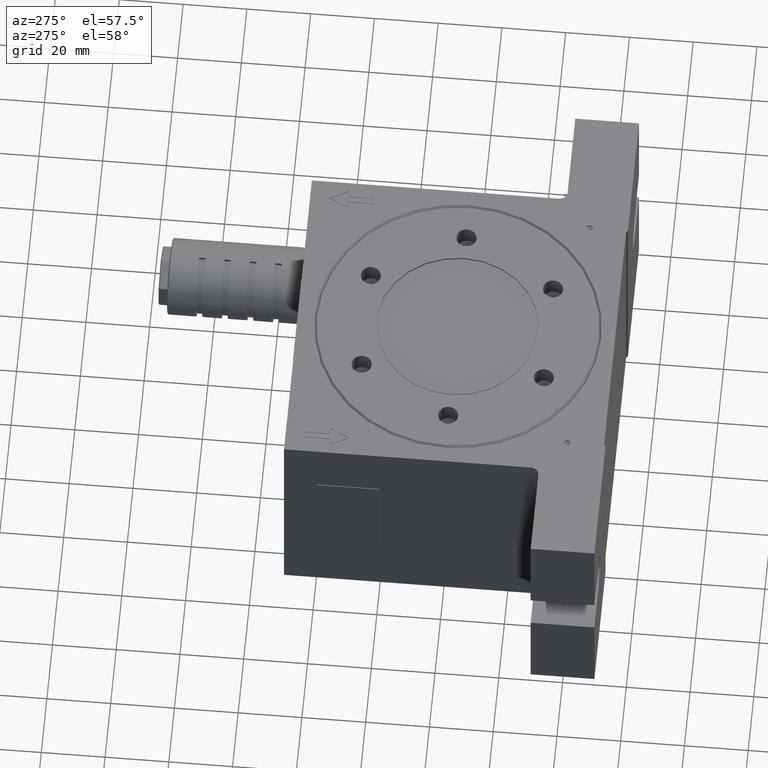
[diagram: clean part render]
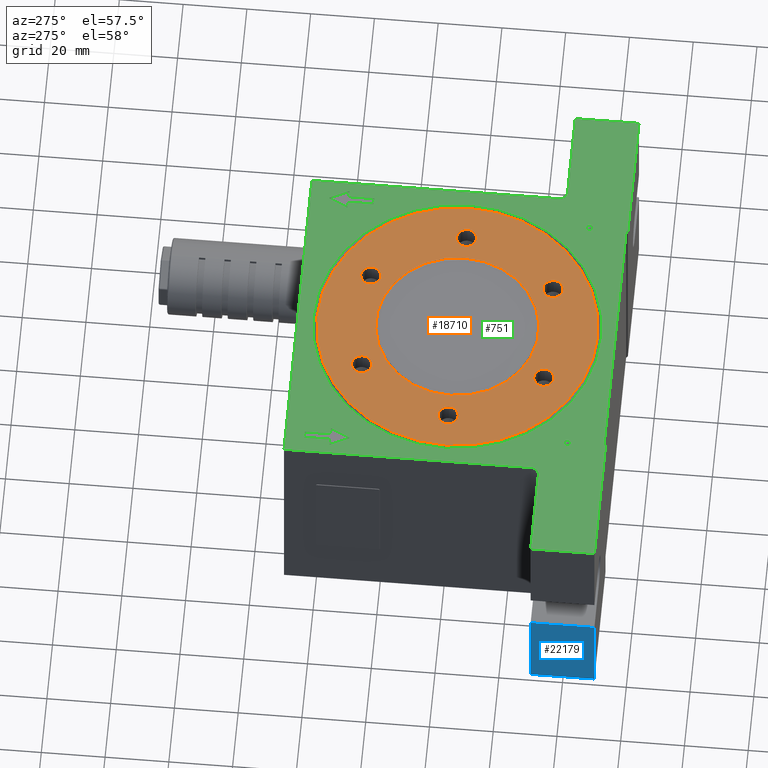
[diagram: same view with three faces highlighted in distinct colors, each labeled with its STEP entity id]
A machine part, auxiliary view with three faces highlighted in distinct colors.
Their STEP definitions:

[orange] entity #18710 — the highlighted planar face has unit normal (0, -0, -1).
#187 = EDGE_CURVE ( 'NONE', #4359, #15449, #24639, .T. ) ;
#356 = DIRECTION ( 'NONE',  ( 1.000000000000000000, 0.0000000000000000000, 0.0000000000000000000 ) ) ;
#495 = AXIS2_PLACEMENT_3D ( 'NONE', #11500, #1926, #19218 ) ;
#726 = VERTEX_POINT ( 'NONE', #12535 ) ;
#773 = AXIS2_PLACEMENT_3D ( 'NONE', #19747, #6613, #8198 ) ;
#787 = DIRECTION ( 'NONE',  ( 1.627025617018336800E-030, 8.801438384760311500E-031, 1.000000000000000000 ) ) ;
#859 = AXIS2_PLACEMENT_3D ( 'NONE', #5804, #19093, #22670 ) ;
#1200 = AXIS2_PLACEMENT_3D ( 'NONE', #8725, #10547, #22447 ) ;
#1470 = EDGE_CURVE ( 'NONE', #2063, #19781, #15410, .T. ) ;
#1756 = VERTEX_POINT ( 'NONE', #19270 ) ;
#1815 = CARTESIAN_POINT ( 'NONE',  ( 13.35000000000004200, -28.57883832488645100, 36.49999999999991500 ) ) ;
#1853 = EDGE_LOOP ( 'NONE', ( #2718, #23961 ) ) ;
#1926 = DIRECTION ( 'NONE',  ( 1.627025617018336800E-030, 8.801438384760311500E-031, 1.000000000000000000 ) ) ;
#2063 = VERTEX_POINT ( 'NONE', #13904 ) ;
#2089 = DIRECTION ( 'NONE',  ( 1.000000000000000000, 0.0000000000000000000, 0.0000000000000000000 ) ) ;
#2090 = AXIS2_PLACEMENT_3D ( 'NONE', #21363, #9643, #11819 ) ;
#2139 = ORIENTED_EDGE ( 'NONE', *, *, #16079, .F. ) ;
#2262 = AXIS2_PLACEMENT_3D ( 'NONE', #14224, #18022, #12465 ) ;
#2444 = EDGE_CURVE ( 'NONE', #8062, #8863, #22168, .T. ) ;
#2718 = ORIENTED_EDGE ( 'NONE', *, *, #10221, .F. ) ;
#2778 = DIRECTION ( 'NONE',  ( 1.000000000000000000, 0.0000000000000000000, 0.0000000000000000000 ) ) ;
#2784 = EDGE_CURVE ( 'NONE', #1756, #16754, #11461, .T. ) ;
#2846 = CARTESIAN_POINT ( 'NONE',  ( 16.50000000000000000, 28.57883832488643300, 36.50000000000000000 ) ) ;
#2893 = DIRECTION ( 'NONE',  ( 1.627025617018336800E-030, 8.801438384760311500E-031, 1.000000000000000000 ) ) ;
#3168 = CARTESIAN_POINT ( 'NONE',  ( 29.85000000000000100, 1.426355154954586900E-014, 36.50000000000000000 ) ) ;
#3231 = CARTESIAN_POINT ( 'NONE',  ( 1.417484439069005600E-028, 0.0000000000000000000, 36.50000000000000000 ) ) ;
#3627 = CARTESIAN_POINT ( 'NONE',  ( 33.00000000000000000, 1.387778780781445700E-014, 36.50000000000000000 ) ) ;
#3646 = EDGE_LOOP ( 'NONE', ( #18014, #17057 ) ) ;
#3931 = CARTESIAN_POINT ( 'NONE',  ( -16.49999999999995700, -28.57883832488645100, 36.49999999999991500 ) ) ;
#3988 = AXIS2_PLACEMENT_3D ( 'NONE', #5592, #19044, #18887 ) ;
#4359 = VERTEX_POINT ( 'NONE', #17299 ) ;
#4378 = DIRECTION ( 'NONE',  ( 1.000000000000000000, 0.0000000000000000000, 0.0000000000000000000 ) ) ;
#4406 = ORIENTED_EDGE ( 'NONE', *, *, #10395, .F. ) ;
#4694 = DIRECTION ( 'NONE',  ( 1.627025617018336800E-030, 8.801438384760311500E-031, 1.000000000000000000 ) ) ;
#4880 = FACE_BOUND ( 'NONE', #6151, .T. ) ;
#4937 = EDGE_LOOP ( 'NONE', ( #15360, #18731 ) ) ;
#5182 = FACE_BOUND ( 'NONE', #6939, .T. ) ;
#5586 = EDGE_CURVE ( 'NONE', #726, #12410, #18868, .T. ) ;
#5592 = CARTESIAN_POINT ( 'NONE',  ( 1.417484439069005600E-028, 0.0000000000000000000, 36.50000000000000000 ) ) ;
#5804 = CARTESIAN_POINT ( 'NONE',  ( -16.49999999999995700, -28.57883832488645100, 36.49999999999991500 ) ) ;
#5914 = CARTESIAN_POINT ( 'NONE',  ( 16.50000000000000000, 28.57883832488643300, 36.50000000000000000 ) ) ;
#6002 = CIRCLE ( 'NONE', #2262, 25.50000000000000000 ) ;
#6151 = EDGE_LOOP ( 'NONE', ( #23982, #13983 ) ) ;
#6289 = CIRCLE ( 'NONE', #21385, 3.149999999999999900 ) ;
#6367 = AXIS2_PLACEMENT_3D ( 'NONE', #5914, #9505, #2089 ) ;
#6613 = DIRECTION ( 'NONE',  ( 1.627025617018336800E-030, 8.801438384760311500E-031, 1.000000000000000000 ) ) ;
#6939 = EDGE_LOOP ( 'NONE', ( #4406, #9985 ) ) ;
#7091 = CARTESIAN_POINT ( 'NONE',  ( -19.64999999999995900, -28.57883832488645100, 36.49999999999991500 ) ) ;
#7108 = EDGE_CURVE ( 'NONE', #19781, #2063, #13160, .T. ) ;
#7480 = AXIS2_PLACEMENT_3D ( 'NONE', #2846, #10599, #16174 ) ;
#7692 = AXIS2_PLACEMENT_3D ( 'NONE', #13882, #787, #4378 ) ;
#7751 = AXIS2_PLACEMENT_3D ( 'NONE', #3627, #9157, #24336 ) ;
#7857 = DIRECTION ( 'NONE',  ( 1.627025617018336800E-030, 8.801438384760311500E-031, 1.000000000000000000 ) ) ;
#8062 = VERTEX_POINT ( 'NONE', #11815 ) ;
#8132 = EDGE_LOOP ( 'NONE', ( #10559, #23648 ) ) ;
#8198 = DIRECTION ( 'NONE',  ( 1.000000000000000000, 0.0000000000000000000, 0.0000000000000000000 ) ) ;
#8228 = VERTEX_POINT ( 'NONE', #9775 ) ;
#8725 = CARTESIAN_POINT ( 'NONE',  ( -16.50000000000000000, 28.57883832488643300, 36.50000000000000000 ) ) ;
#8767 = CIRCLE ( 'NONE', #7480, 3.149999999999999900 ) ;
#8863 = VERTEX_POINT ( 'NONE', #3168 ) ;
#9044 = CARTESIAN_POINT ( 'NONE',  ( -16.50000000000000000, 28.57883832488643300, 36.50000000000000000 ) ) ;
#9118 = VERTEX_POINT ( 'NONE', #20208 ) ;
#9157 = DIRECTION ( 'NONE',  ( 1.627025617018336800E-030, 8.801438384760311500E-031, 1.000000000000000000 ) ) ;
#9270 = CARTESIAN_POINT ( 'NONE',  ( 19.65000000000000200, 28.57883832488643300, 36.50000000000000000 ) ) ;
#9431 = DIRECTION ( 'NONE',  ( 1.627025617018336800E-030, 8.801438384760311500E-031, 1.000000000000000000 ) ) ;
#9505 = DIRECTION ( 'NONE',  ( 1.627025617018336800E-030, 8.801438384760311500E-031, 1.000000000000000000 ) ) ;
#9643 = DIRECTION ( 'NONE',  ( 1.627025617018336800E-030, 8.801438384760311500E-031, 1.000000000000000000 ) ) ;
#9666 = CARTESIAN_POINT ( 'NONE',  ( 33.00000000000000000, 1.387778780781445700E-014, 36.50000000000000000 ) ) ;
#9775 = CARTESIAN_POINT ( 'NONE',  ( -19.65000000000000200, 28.57883832488643300, 36.50000000000000000 ) ) ;
#9832 = DIRECTION ( 'NONE',  ( 1.627025617018336800E-030, 8.801438384760311500E-031, 1.000000000000000000 ) ) ;
#9917 = CARTESIAN_POINT ( 'NONE',  ( 16.50000000000004300, -28.57883832488645100, 36.49999999999991500 ) ) ;
#9985 = ORIENTED_EDGE ( 'NONE', *, *, #23264, .F. ) ;
#9998 = ORIENTED_EDGE ( 'NONE', *, *, #7108, .T. ) ;
#10164 = DIRECTION ( 'NONE',  ( 1.000000000000000000, 0.0000000000000000000, 0.0000000000000000000 ) ) ;
#10221 = EDGE_CURVE ( 'NONE', #16754, #1756, #6002, .T. ) ;
#10395 = EDGE_CURVE ( 'NONE', #9118, #8228, #6289, .T. ) ;
#10547 = DIRECTION ( 'NONE',  ( 1.627025617018336800E-030, 8.801438384760311500E-031, 1.000000000000000000 ) ) ;
#10559 = ORIENTED_EDGE ( 'NONE', *, *, #5586, .F. ) ;
#10599 = DIRECTION ( 'NONE',  ( 1.627025617018336800E-030, 8.801438384760311500E-031, 1.000000000000000000 ) ) ;
#10660 = AXIS2_PLACEMENT_3D ( 'NONE', #3931, #7857, #356 ) ;
#10807 = VERTEX_POINT ( 'NONE', #14363 ) ;
#10857 = FACE_OUTER_BOUND ( 'NONE', #22014, .T. ) ;
#11340 = DIRECTION ( 'NONE',  ( 1.000000000000000000, 0.0000000000000000000, 0.0000000000000000000 ) ) ;
#11461 = CIRCLE ( 'NONE', #20362, 25.50000000000000000 ) ;
#11500 = CARTESIAN_POINT ( 'NONE',  ( -33.00000000000000000, 0.0000000000000000000, 36.50000000000000000 ) ) ;
#11725 = CARTESIAN_POINT ( 'NONE',  ( 44.00000000000000000, 5.425185320222774500E-015, 36.50000000000000000 ) ) ;
#11815 = CARTESIAN_POINT ( 'NONE',  ( 36.14999999999999900, 1.387778780781445700E-014, 36.50000000000000000 ) ) ;
#11819 = DIRECTION ( 'NONE',  ( -1.000000000000000000, 0.0000000000000000000, 0.0000000000000000000 ) ) ;
#12199 = AXIS2_PLACEMENT_3D ( 'NONE', #3231, #2893, #24090 ) ;
#12410 = VERTEX_POINT ( 'NONE', #7091 ) ;
#12465 = DIRECTION ( 'NONE',  ( 1.000000000000000000, 0.0000000000000000000, 0.0000000000000000000 ) ) ;
#12535 = CARTESIAN_POINT ( 'NONE',  ( -13.34999999999995900, -28.57883832488645100, 36.49999999999991500 ) ) ;
#12824 = EDGE_CURVE ( 'NONE', #12410, #726, #19170, .T. ) ;
#12863 = VERTEX_POINT ( 'NONE', #9270 ) ;
#13121 = AXIS2_PLACEMENT_3D ( 'NONE', #9917, #9832, #10164 ) ;
#13160 = CIRCLE ( 'NONE', #2090, 44.00000000000000000 ) ;
#13231 = CARTESIAN_POINT ( 'NONE',  ( 25.50000000000000000, 0.0000000000000000000, 36.50000000000000000 ) ) ;
#13389 = VERTEX_POINT ( 'NONE', #22937 ) ;
#13495 = PLANE ( 'NONE',  #3988 ) ;
#13864 = CIRCLE ( 'NONE', #773, 3.149999999999999900 ) ;
#13882 = CARTESIAN_POINT ( 'NONE',  ( 16.50000000000004300, -28.57883832488645100, 36.49999999999991500 ) ) ;
#13904 = CARTESIAN_POINT ( 'NONE',  ( -44.00000000000000000, 0.0000000000000000000, 36.50000000000000000 ) ) ;
#13983 = ORIENTED_EDGE ( 'NONE', *, *, #18717, .F. ) ;
#14199 = CARTESIAN_POINT ( 'NONE',  ( 1.417484439069005600E-028, 0.0000000000000000000, 36.50000000000000000 ) ) ;
#14224 = CARTESIAN_POINT ( 'NONE',  ( 1.417484439069005600E-028, 0.0000000000000000000, 36.50000000000000000 ) ) ;
#14363 = CARTESIAN_POINT ( 'NONE',  ( -29.85000000000000100, 0.0000000000000000000, 36.50000000000000000 ) ) ;
#14620 = DIRECTION ( 'NONE',  ( 1.000000000000000000, 0.0000000000000000000, 0.0000000000000000000 ) ) ;
#15088 = VERTEX_POINT ( 'NONE', #21248 ) ;
#15319 = FACE_BOUND ( 'NONE', #15691, .T. ) ;
#15360 = ORIENTED_EDGE ( 'NONE', *, *, #18349, .F. ) ;
#15410 = CIRCLE ( 'NONE', #12199, 44.00000000000000000 ) ;
#15449 = VERTEX_POINT ( 'NONE', #1815 ) ;
#15691 = EDGE_LOOP ( 'NONE', ( #24468, #2139 ) ) ;
#16079 = EDGE_CURVE ( 'NONE', #15088, #12863, #8767, .T. ) ;
#16174 = DIRECTION ( 'NONE',  ( 1.000000000000000000, 0.0000000000000000000, 0.0000000000000000000 ) ) ;
#16211 = FACE_BOUND ( 'NONE', #3646, .T. ) ;
#16754 = VERTEX_POINT ( 'NONE', #13231 ) ;
#17057 = ORIENTED_EDGE ( 'NONE', *, *, #19793, .F. ) ;
#17224 = AXIS2_PLACEMENT_3D ( 'NONE', #9666, #9431, #11340 ) ;
#17299 = CARTESIAN_POINT ( 'NONE',  ( 19.65000000000004100, -28.57883832488645100, 36.49999999999991500 ) ) ;
#18014 = ORIENTED_EDGE ( 'NONE', *, *, #187, .F. ) ;
#18022 = DIRECTION ( 'NONE',  ( 1.627025617018336800E-030, 8.801438384760311500E-031, 1.000000000000000000 ) ) ;
#18349 = EDGE_CURVE ( 'NONE', #10807, #13389, #13864, .T. ) ;
#18702 = EDGE_CURVE ( 'NONE', #12863, #15088, #24208, .T. ) ;
#18710 = ADVANCED_FACE ( 'NONE', ( #10857, #15319, #5182, #21264, #4880, #16211, #23916, #19154 ), #13495, .F. ) ;
#18717 = EDGE_CURVE ( 'NONE', #8863, #8062, #22143, .T. ) ;
#18731 = ORIENTED_EDGE ( 'NONE', *, *, #19626, .F. ) ;
#18849 = CIRCLE ( 'NONE', #1200, 3.149999999999999900 ) ;
#18868 = CIRCLE ( 'NONE', #10660, 3.149999999999999900 ) ;
#18887 = DIRECTION ( 'NONE',  ( -1.000000000000000000, 0.0000000000000000000, -1.627025617018336800E-030 ) ) ;
#19044 = DIRECTION ( 'NONE',  ( 1.627025617018336800E-030, -8.801438384760311500E-031, -1.000000000000000000 ) ) ;
#19093 = DIRECTION ( 'NONE',  ( 1.627025617018336800E-030, 8.801438384760311500E-031, 1.000000000000000000 ) ) ;
#19154 = FACE_BOUND ( 'NONE', #1853, .T. ) ;
#19170 = CIRCLE ( 'NONE', #859, 3.149999999999999900 ) ;
#19218 = DIRECTION ( 'NONE',  ( 1.000000000000000000, 0.0000000000000000000, 0.0000000000000000000 ) ) ;
#19270 = CARTESIAN_POINT ( 'NONE',  ( -25.50000000000000000, 3.122849337825749800E-015, 36.50000000000000000 ) ) ;
#19626 = EDGE_CURVE ( 'NONE', #13389, #10807, #23243, .T. ) ;
#19747 = CARTESIAN_POINT ( 'NONE',  ( -33.00000000000000000, 0.0000000000000000000, 36.50000000000000000 ) ) ;
#19781 = VERTEX_POINT ( 'NONE', #11725 ) ;
#19793 = EDGE_CURVE ( 'NONE', #15449, #4359, #23221, .T. ) ;
#20208 = CARTESIAN_POINT ( 'NONE',  ( -13.35000000000000100, 28.57883832488643300, 36.50000000000000000 ) ) ;
#20362 = AXIS2_PLACEMENT_3D ( 'NONE', #14199, #4694, #2778 ) ;
#21248 = CARTESIAN_POINT ( 'NONE',  ( 13.35000000000000100, 28.57883832488643300, 36.50000000000000000 ) ) ;
#21264 = FACE_BOUND ( 'NONE', #4937, .T. ) ;
#21363 = CARTESIAN_POINT ( 'NONE',  ( 1.417484439069005600E-028, 0.0000000000000000000, 36.50000000000000000 ) ) ;
#21385 = AXIS2_PLACEMENT_3D ( 'NONE', #9044, #22165, #14620 ) ;
#22014 = EDGE_LOOP ( 'NONE', ( #22495, #9998 ) ) ;
#22143 = CIRCLE ( 'NONE', #17224, 3.149999999999999900 ) ;
#22165 = DIRECTION ( 'NONE',  ( 1.627025617018336800E-030, 8.801438384760311500E-031, 1.000000000000000000 ) ) ;
#22168 = CIRCLE ( 'NONE', #7751, 3.149999999999999900 ) ;
#22447 = DIRECTION ( 'NONE',  ( 1.000000000000000000, 0.0000000000000000000, 0.0000000000000000000 ) ) ;
#22495 = ORIENTED_EDGE ( 'NONE', *, *, #1470, .T. ) ;
#22670 = DIRECTION ( 'NONE',  ( 1.000000000000000000, 0.0000000000000000000, 0.0000000000000000000 ) ) ;
#22937 = CARTESIAN_POINT ( 'NONE',  ( -36.14999999999999900, 3.857637417314134100E-016, 36.50000000000000000 ) ) ;
#23221 = CIRCLE ( 'NONE', #7692, 3.149999999999999900 ) ;
#23243 = CIRCLE ( 'NONE', #495, 3.149999999999999900 ) ;
#23264 = EDGE_CURVE ( 'NONE', #8228, #9118, #18849, .T. ) ;
#23648 = ORIENTED_EDGE ( 'NONE', *, *, #12824, .F. ) ;
#23916 = FACE_BOUND ( 'NONE', #8132, .T. ) ;
#23961 = ORIENTED_EDGE ( 'NONE', *, *, #2784, .F. ) ;
#23982 = ORIENTED_EDGE ( 'NONE', *, *, #2444, .F. ) ;
#24090 = DIRECTION ( 'NONE',  ( -1.000000000000000000, 0.0000000000000000000, 0.0000000000000000000 ) ) ;
#24208 = CIRCLE ( 'NONE', #6367, 3.149999999999999900 ) ;
#24336 = DIRECTION ( 'NONE',  ( 1.000000000000000000, 0.0000000000000000000, 0.0000000000000000000 ) ) ;
#24468 = ORIENTED_EDGE ( 'NONE', *, *, #18702, .F. ) ;
#24639 = CIRCLE ( 'NONE', #13121, 3.149999999999999900 ) ;

[blue] entity #22179 — the highlighted planar face has unit normal (1, -0, -0).
#764 = LINE ( 'NONE', #17593, #22506 ) ;
#927 = CARTESIAN_POINT ( 'NONE',  ( -80.00000000000000000, -50.00000000000000000, -36.50000000000007800 ) ) ;
#2739 = CARTESIAN_POINT ( 'NONE',  ( -80.00000000000000000, -50.00000000000000000, -6.499999999999989300 ) ) ;
#4111 = VERTEX_POINT ( 'NONE', #927 ) ;
#4281 = DIRECTION ( 'NONE',  ( -1.627025617018336800E-030, -8.801438384760311500E-031, -1.000000000000000000 ) ) ;
#4704 = EDGE_CURVE ( 'NONE', #16450, #4111, #8230, .T. ) ;
#5042 = LINE ( 'NONE', #14261, #8011 ) ;
#6136 = EDGE_CURVE ( 'NONE', #14195, #9215, #14105, .T. ) ;
#7333 = DIRECTION ( 'NONE',  ( 0.0000000000000000000, -1.000000000000000000, -8.801438384760299300E-031 ) ) ;
#7702 = ORIENTED_EDGE ( 'NONE', *, *, #12298, .F. ) ;
#8011 = VECTOR ( 'NONE', #12028, 1000.000000000000000 ) ;
#8042 = DIRECTION ( 'NONE',  ( 1.627025617018336800E-030, 8.801438384760311500E-031, 1.000000000000000000 ) ) ;
#8230 = LINE ( 'NONE', #14887, #24563 ) ;
#8367 = EDGE_LOOP ( 'NONE', ( #19005, #12926, #7702, #13577 ) ) ;
#9215 = VERTEX_POINT ( 'NONE', #13637 ) ;
#9868 = CARTESIAN_POINT ( 'NONE',  ( -80.00000000000000000, -50.00000000000000000, 36.49999999999991500 ) ) ;
#11282 = CARTESIAN_POINT ( 'NONE',  ( -80.00000000000000000, -50.00000000000000000, -6.499999999999989300 ) ) ;
#11714 = PLANE ( 'NONE',  #14585 ) ;
#12028 = DIRECTION ( 'NONE',  ( -1.627025617018336800E-030, -8.801438384760311500E-031, -1.000000000000000000 ) ) ;
#12298 = EDGE_CURVE ( 'NONE', #16450, #9215, #764, .T. ) ;
#12926 = ORIENTED_EDGE ( 'NONE', *, *, #6136, .T. ) ;
#13577 = ORIENTED_EDGE ( 'NONE', *, *, #4704, .T. ) ;
#13637 = CARTESIAN_POINT ( 'NONE',  ( -80.00000000000000000, -30.00000000000000000, -6.499999999999989300 ) ) ;
#14105 = LINE ( 'NONE', #2739, #19746 ) ;
#14195 = VERTEX_POINT ( 'NONE', #11282 ) ;
#14261 = CARTESIAN_POINT ( 'NONE',  ( -80.00000000000000000, -50.00000000000000000, 36.49999999999991500 ) ) ;
#14585 = AXIS2_PLACEMENT_3D ( 'NONE', #9868, #15542, #4281 ) ;
#14887 = CARTESIAN_POINT ( 'NONE',  ( -80.00000000000000000, -50.00000000000000000, -36.50000000000007800 ) ) ;
#15542 = DIRECTION ( 'NONE',  ( 1.000000000000000000, -2.864033143722703800E-060, -1.627025617018336800E-030 ) ) ;
#15825 = CARTESIAN_POINT ( 'NONE',  ( -80.00000000000000000, -30.00000000000000000, -36.50000000000007800 ) ) ;
#16450 = VERTEX_POINT ( 'NONE', #15825 ) ;
#17593 = CARTESIAN_POINT ( 'NONE',  ( -80.00000000000000000, -30.00000000000000000, -36.50000000000007800 ) ) ;
#19005 = ORIENTED_EDGE ( 'NONE', *, *, #21847, .F. ) ;
#19746 = VECTOR ( 'NONE', #23344, 1000.000000000000000 ) ;
#20196 = FACE_OUTER_BOUND ( 'NONE', #8367, .T. ) ;
#21847 = EDGE_CURVE ( 'NONE', #14195, #4111, #5042, .T. ) ;
#22179 = ADVANCED_FACE ( 'NONE', ( #20196 ), #11714, .F. ) ;
#22506 = VECTOR ( 'NONE', #8042, 1000.000000000000000 ) ;
#23344 = DIRECTION ( 'NONE',  ( 0.0000000000000000000, 1.000000000000000000, 8.801438384760299300E-031 ) ) ;
#24563 = VECTOR ( 'NONE', #7333, 1000.000000000000000 ) ;

[green] entity #751 — the highlighted planar face has unit normal (0, -0, -1).
#61 = VECTOR ( 'NONE', #8799, 1000.000000000000000 ) ;
#128 = EDGE_CURVE ( 'NONE', #12328, #13756, #13381, .T. ) ;
#232 = CARTESIAN_POINT ( 'NONE',  ( 39.99999999999999300, -38.00000000000000000, 36.50000000000000000 ) ) ;
#247 = EDGE_CURVE ( 'NONE', #3514, #23973, #22853, .T. ) ;
#300 = CARTESIAN_POINT ( 'NONE',  ( 40.99999999999999300, 37.99999999999997900, 36.50000000000000000 ) ) ;
#564 = VERTEX_POINT ( 'NONE', #15313 ) ;
#660 = EDGE_CURVE ( 'NONE', #14329, #19322, #5303, .T. ) ;
#679 = DIRECTION ( 'NONE',  ( -1.000000000000000000, 0.0000000000000000000, -1.627025617018336800E-030 ) ) ;
#751 = ADVANCED_FACE ( 'NONE', ( #4391, #823, #20490, #24021, #18958, #5893 ), #8557, .F. ) ;
#763 = CARTESIAN_POINT ( 'NONE',  ( 47.00000000000000000, 37.99999999999999300, 36.50000000000000000 ) ) ;
#823 = FACE_BOUND ( 'NONE', #13648, .T. ) ;
#857 = VECTOR ( 'NONE', #19238, 1000.000000000000000 ) ;
#1144 = VECTOR ( 'NONE', #4571, 1000.000000000000000 ) ;
#1147 = LINE ( 'NONE', #21324, #11020 ) ;
#1203 = ORIENTED_EDGE ( 'NONE', *, *, #7519, .F. ) ;
#1210 = ORIENTED_EDGE ( 'NONE', *, *, #18704, .F. ) ;
#1267 = CARTESIAN_POINT ( 'NONE',  ( -50.00000000000000700, 49.99999999999983700, 36.50000000000000000 ) ) ;
#1475 = CARTESIAN_POINT ( 'NONE',  ( 42.99999999999999300, 29.99999999999983300, 36.49999999999991500 ) ) ;
#1691 = VERTEX_POINT ( 'NONE', #3880 ) ;
#1701 = ORIENTED_EDGE ( 'NONE', *, *, #128, .F. ) ;
#1782 = EDGE_CURVE ( 'NONE', #8943, #12328, #10922, .T. ) ;
#1785 = VERTEX_POINT ( 'NONE', #10586 ) ;
#1793 = VERTEX_POINT ( 'NONE', #1267 ) ;
#1906 = VERTEX_POINT ( 'NONE', #18723 ) ;
#2028 = CARTESIAN_POINT ( 'NONE',  ( 1.417484439069005600E-028, 0.0000000000000000000, 36.50000000000000000 ) ) ;
#2377 = ORIENTED_EDGE ( 'NONE', *, *, #12975, .F. ) ;
#2532 = AXIS2_PLACEMENT_3D ( 'NONE', #18571, #7129, #9199 ) ;
#2623 = DIRECTION ( 'NONE',  ( -1.627025617018336800E-030, -8.801438384760311500E-031, -1.000000000000000000 ) ) ;
#2731 = DIRECTION ( 'NONE',  ( 0.4472135954999583700, -0.8944271909999157400, 0.0000000000000000000 ) ) ;
#2771 = EDGE_CURVE ( 'NONE', #10346, #24199, #6090, .T. ) ;
#2814 = CARTESIAN_POINT ( 'NONE',  ( -47.00000000000000000, 35.99999999999983700, 36.50000000000000000 ) ) ;
#3053 = AXIS2_PLACEMENT_3D ( 'NONE', #12525, #3206, #14542 ) ;
#3075 = EDGE_CURVE ( 'NONE', #8897, #18358, #17955, .T. ) ;
#3206 = DIRECTION ( 'NONE',  ( -1.627025617018336800E-030, -8.801438384760311500E-031, -1.000000000000000000 ) ) ;
#3260 = AXIS2_PLACEMENT_3D ( 'NONE', #18263, #6811, #12294 ) ;
#3309 = LINE ( 'NONE', #20441, #3899 ) ;
#3333 = VERTEX_POINT ( 'NONE', #10006 ) ;
#3342 = CARTESIAN_POINT ( 'NONE',  ( 45.00000000000000000, 37.99999999999982200, 36.50000000000000000 ) ) ;
#3364 = ORIENTED_EDGE ( 'NONE', *, *, #3412, .F. ) ;
#3412 = EDGE_CURVE ( 'NONE', #13756, #10346, #8749, .T. ) ;
#3438 = VECTOR ( 'NONE', #6025, 1000.000000000000000 ) ;
#3514 = VERTEX_POINT ( 'NONE', #3342 ) ;
#3642 = CARTESIAN_POINT ( 'NONE',  ( -39.99999999999999300, -49.50000000000000000, 36.50000000000000000 ) ) ;
#3664 = VECTOR ( 'NONE', #11173, 1000.000000000000000 ) ;
#3682 = EDGE_CURVE ( 'NONE', #1785, #20103, #17905, .T. ) ;
#3880 = CARTESIAN_POINT ( 'NONE',  ( -80.00000000000000000, -50.00000000000000000, 36.49999999999991500 ) ) ;
#3899 = VECTOR ( 'NONE', #24479, 1000.000000000000000 ) ;
#3974 = CIRCLE ( 'NONE', #22752, 2.500000000000002200 ) ;
#4003 = CARTESIAN_POINT ( 'NONE',  ( -52.50000000000000000, -27.50000000000000000, 36.50000000000000000 ) ) ;
#4066 = ORIENTED_EDGE ( 'NONE', *, *, #7494, .T. ) ;
#4115 = CARTESIAN_POINT ( 'NONE',  ( -80.00000000000000000, -30.00000000000000000, 36.49999999999991500 ) ) ;
#4249 = ORIENTED_EDGE ( 'NONE', *, *, #14359, .F. ) ;
#4291 = EDGE_LOOP ( 'NONE', ( #20773, #9549 ) ) ;
#4296 = VERTEX_POINT ( 'NONE', #16579 ) ;
#4391 = FACE_BOUND ( 'NONE', #4291, .T. ) ;
#4528 = DIRECTION ( 'NONE',  ( -1.000000000000000000, 0.0000000000000000000, -1.627025617018336800E-030 ) ) ;
#4568 = DIRECTION ( 'NONE',  ( 0.4472135954999583700, 0.8944271909999157400, 1.183291357831517400E-030 ) ) ;
#4571 = DIRECTION ( 'NONE',  ( 1.000000000000000000, 0.0000000000000000000, 1.627025617018336800E-030 ) ) ;
#4753 = CARTESIAN_POINT ( 'NONE',  ( 43.99999999999999300, 43.99999999999982900, 36.50000000000000000 ) ) ;
#4821 = LINE ( 'NONE', #13606, #3438 ) ;
#4829 = VECTOR ( 'NONE', #2731, 999.9999999999998900 ) ;
#4894 = CARTESIAN_POINT ( 'NONE',  ( 45.19999999999999600, 8.801438384760320300E-031, 36.50000000000000000 ) ) ;
#5246 = AXIS2_PLACEMENT_3D ( 'NONE', #12056, #2623, #10129 ) ;
#5280 = CARTESIAN_POINT ( 'NONE',  ( 80.00000000000000000, -30.00000000000000000, 36.50000000000000000 ) ) ;
#5303 = LINE ( 'NONE', #23242, #19881 ) ;
#5345 = CARTESIAN_POINT ( 'NONE',  ( -43.00000000000000000, 44.00000000000000000, 36.50000000000000000 ) ) ;
#5347 = CARTESIAN_POINT ( 'NONE',  ( 44.99999999999999300, 29.99999999999983300, 36.49999999999991500 ) ) ;
#5690 = EDGE_CURVE ( 'NONE', #15631, #15301, #12332, .T. ) ;
#5893 = FACE_BOUND ( 'NONE', #21841, .T. ) ;
#5913 = DIRECTION ( 'NONE',  ( -1.627025617018336800E-030, -8.801438384760311500E-031, -1.000000000000000000 ) ) ;
#5937 = CIRCLE ( 'NONE', #22828, 1.000000000000000900 ) ;
#6025 = DIRECTION ( 'NONE',  ( -1.000000000000000000, 0.0000000000000000000, -1.627025617018336800E-030 ) ) ;
#6090 = LINE ( 'NONE', #17910, #8480 ) ;
#6168 = DIRECTION ( 'NONE',  ( -1.000000000000000000, 0.0000000000000000000, 0.0000000000000000000 ) ) ;
#6215 = CARTESIAN_POINT ( 'NONE',  ( -41.00000000000000700, -38.00000000000000000, 36.50000000000000000 ) ) ;
#6246 = EDGE_CURVE ( 'NONE', #21814, #21378, #8445, .T. ) ;
#6250 = ORIENTED_EDGE ( 'NONE', *, *, #21008, .F. ) ;
#6281 = EDGE_LOOP ( 'NONE', ( #17947, #12229, #6357, #10409, #11236, #4066, #13786, #10024, #7270, #21105, #6250, #21438, #4249, #21556 ) ) ;
#6340 = VERTEX_POINT ( 'NONE', #4894 ) ;
#6347 = VECTOR ( 'NONE', #7445, 1000.000000000000000 ) ;
#6357 = ORIENTED_EDGE ( 'NONE', *, *, #19168, .F. ) ;
#6386 = CARTESIAN_POINT ( 'NONE',  ( -47.00000000000000000, 35.99999999999983700, 36.50000000000000000 ) ) ;
#6405 = AXIS2_PLACEMENT_3D ( 'NONE', #21019, #21097, #13292 ) ;
#6478 = DIRECTION ( 'NONE',  ( 1.000000000000000000, 0.0000000000000000000, 1.627025617018336800E-030 ) ) ;
#6504 = CARTESIAN_POINT ( 'NONE',  ( 45.00000000000000000, 37.99999999999982200, 36.50000000000000000 ) ) ;
#6752 = DIRECTION ( 'NONE',  ( 1.000000000000000000, 0.0000000000000000000, 0.0000000000000000000 ) ) ;
#6811 = DIRECTION ( 'NONE',  ( 1.627025617018336800E-030, -8.801438384760311500E-031, -1.000000000000000000 ) ) ;
#6842 = ORIENTED_EDGE ( 'NONE', *, *, #15100, .F. ) ;
#6962 = LINE ( 'NONE', #23757, #10822 ) ;
#7129 = DIRECTION ( 'NONE',  ( 1.627025617018336800E-030, 8.801438384760311500E-031, 1.000000000000000000 ) ) ;
#7261 = EDGE_CURVE ( 'NONE', #17017, #3333, #14320, .T. ) ;
#7266 = CARTESIAN_POINT ( 'NONE',  ( -39.99999999999999300, -50.00000000000000000, 36.50000000000000000 ) ) ;
#7270 = ORIENTED_EDGE ( 'NONE', *, *, #5690, .F. ) ;
#7445 = DIRECTION ( 'NONE',  ( 0.0000000000000000000, 1.000000000000000000, 8.801438384760299300E-031 ) ) ;
#7494 = EDGE_CURVE ( 'NONE', #19322, #4296, #3309, .T. ) ;
#7497 = DIRECTION ( 'NONE',  ( -1.000000000000000000, -8.673617379884035500E-017, -1.700981326882806700E-030 ) ) ;
#7519 = EDGE_CURVE ( 'NONE', #21378, #21814, #17596, .T. ) ;
#7619 = CARTESIAN_POINT ( 'NONE',  ( -43.00000000000000000, 36.00000000000000700, 36.50000000000000000 ) ) ;
#7650 = DIRECTION ( 'NONE',  ( 1.000000000000000000, 0.0000000000000000000, 0.0000000000000000000 ) ) ;
#7841 = CARTESIAN_POINT ( 'NONE',  ( -43.00000000000000000, 44.00000000000000000, 36.50000000000000000 ) ) ;
#8270 = DIRECTION ( 'NONE',  ( -0.4472135954999583700, 0.8944271909999157400, 0.0000000000000000000 ) ) ;
#8335 = VECTOR ( 'NONE', #20550, 1000.000000000000000 ) ;
#8439 = ORIENTED_EDGE ( 'NONE', *, *, #20422, .F. ) ;
#8445 = CIRCLE ( 'NONE', #16765, 1.000000000000000900 ) ;
#8480 = VECTOR ( 'NONE', #12280, 1000.000000000000000 ) ;
#8557 = PLANE ( 'NONE',  #3260 ) ;
#8738 = ORIENTED_EDGE ( 'NONE', *, *, #1782, .F. ) ;
#8749 = LINE ( 'NONE', #13096, #3664 ) ;
#8799 = DIRECTION ( 'NONE',  ( -1.000000000000000000, 0.0000000000000000000, -1.627025617018336800E-030 ) ) ;
#8867 = ORIENTED_EDGE ( 'NONE', *, *, #3682, .F. ) ;
#8897 = VERTEX_POINT ( 'NONE', #7266 ) ;
#8943 = VERTEX_POINT ( 'NONE', #15153 ) ;
#9075 = CARTESIAN_POINT ( 'NONE',  ( -50.00000000000000700, -27.50000000000000000, 36.50000000000000000 ) ) ;
#9078 = VERTEX_POINT ( 'NONE', #9075 ) ;
#9199 = DIRECTION ( 'NONE',  ( 1.000000000000000000, 0.0000000000000000000, 0.0000000000000000000 ) ) ;
#9456 = VERTEX_POINT ( 'NONE', #15933 ) ;
#9526 = LINE ( 'NONE', #11394, #8335 ) ;
#9549 = ORIENTED_EDGE ( 'NONE', *, *, #19865, .T. ) ;
#9580 = CARTESIAN_POINT ( 'NONE',  ( -80.00000000000000000, -50.00000000000000000, 36.49999999999991500 ) ) ;
#9750 = DIRECTION ( 'NONE',  ( 0.0000000000000000000, 1.000000000000000000, 8.801438384760299300E-031 ) ) ;
#9813 = ORIENTED_EDGE ( 'NONE', *, *, #6246, .F. ) ;
#9830 = EDGE_CURVE ( 'NONE', #21334, #564, #21793, .T. ) ;
#9902 = CARTESIAN_POINT ( 'NONE',  ( -45.19999999999999600, 5.535403532146037100E-015, 36.50000000000000000 ) ) ;
#10006 = CARTESIAN_POINT ( 'NONE',  ( -45.00000000000000000, 36.00000000000000700, 36.50000000000000000 ) ) ;
#10024 = ORIENTED_EDGE ( 'NONE', *, *, #17958, .T. ) ;
#10099 = CARTESIAN_POINT ( 'NONE',  ( 49.99999999999999300, 50.00000000000000000, 36.49999999999991500 ) ) ;
#10129 = DIRECTION ( 'NONE',  ( -1.000000000000000000, 0.0000000000000000000, 0.0000000000000000000 ) ) ;
#10185 = CARTESIAN_POINT ( 'NONE',  ( -10.00000000000000000, -20.00000000000000000, 36.50000000000000000 ) ) ;
#10287 = CARTESIAN_POINT ( 'NONE',  ( -45.00000000000000000, 36.00000000000000700, 36.50000000000000000 ) ) ;
#10346 = VERTEX_POINT ( 'NONE', #1475 ) ;
#10409 = ORIENTED_EDGE ( 'NONE', *, *, #16498, .T. ) ;
#10586 = CARTESIAN_POINT ( 'NONE',  ( -41.00000000000000700, 35.99999999999997900, 36.50000000000000000 ) ) ;
#10797 = CARTESIAN_POINT ( 'NONE',  ( -41.00000000000000700, 35.99999999999997900, 36.50000000000000000 ) ) ;
#10822 = VECTOR ( 'NONE', #4568, 999.9999999999998900 ) ;
#10833 = LINE ( 'NONE', #3642, #22416 ) ;
#10922 = LINE ( 'NONE', #4753, #12399 ) ;
#11020 = VECTOR ( 'NONE', #679, 1000.000000000000000 ) ;
#11173 = DIRECTION ( 'NONE',  ( 0.0000000000000000000, -1.000000000000000000, -8.801438384760299300E-031 ) ) ;
#11236 = ORIENTED_EDGE ( 'NONE', *, *, #660, .T. ) ;
#11394 = CARTESIAN_POINT ( 'NONE',  ( -50.00000000000000700, 49.99999999999983700, 36.50000000000000000 ) ) ;
#11411 = VECTOR ( 'NONE', #14072, 1000.000000000000000 ) ;
#11485 = LINE ( 'NONE', #763, #14164 ) ;
#11693 = VECTOR ( 'NONE', #19335, 1000.000000000000000 ) ;
#11841 = EDGE_CURVE ( 'NONE', #6340, #13406, #21924, .T. ) ;
#11943 = CARTESIAN_POINT ( 'NONE',  ( -52.49999999999999300, -30.00000000000000000, 36.50000000000000000 ) ) ;
#12018 = LINE ( 'NONE', #19631, #11411 ) ;
#12052 = CARTESIAN_POINT ( 'NONE',  ( 49.99999999999999300, 50.00000000000000000, 36.49999999999991500 ) ) ;
#12056 = CARTESIAN_POINT ( 'NONE',  ( 52.50000000000000000, -27.50000000000000000, 36.49999999999991500 ) ) ;
#12229 = ORIENTED_EDGE ( 'NONE', *, *, #3075, .T. ) ;
#12280 = DIRECTION ( 'NONE',  ( 1.000000000000000000, 0.0000000000000000000, 1.627025617018336800E-030 ) ) ;
#12294 = DIRECTION ( 'NONE',  ( -1.000000000000000000, 0.0000000000000000000, -1.627025617018336800E-030 ) ) ;
#12328 = VERTEX_POINT ( 'NONE', #300 ) ;
#12332 = LINE ( 'NONE', #10099, #20379 ) ;
#12399 = VECTOR ( 'NONE', #16164, 999.9999999999998900 ) ;
#12407 = CARTESIAN_POINT ( 'NONE',  ( -40.00000000000000700, -38.00000000000000000, 36.50000000000000000 ) ) ;
#12525 = CARTESIAN_POINT ( 'NONE',  ( 1.417484439069005600E-028, 0.0000000000000000000, 36.50000000000000000 ) ) ;
#12576 = LINE ( 'NONE', #10287, #24169 ) ;
#12674 = CARTESIAN_POINT ( 'NONE',  ( 44.99999999999999300, 29.99999999999983300, 36.49999999999991500 ) ) ;
#12877 = VECTOR ( 'NONE', #20687, 1000.000000000000000 ) ;
#12955 = EDGE_LOOP ( 'NONE', ( #9813, #1203 ) ) ;
#12975 = EDGE_CURVE ( 'NONE', #23973, #8943, #11485, .T. ) ;
#13031 = VERTEX_POINT ( 'NONE', #11943 ) ;
#13096 = CARTESIAN_POINT ( 'NONE',  ( 43.00000000000000000, 37.99999999999982200, 36.50000000000000000 ) ) ;
#13292 = DIRECTION ( 'NONE',  ( 1.000000000000000000, 0.0000000000000000000, 0.0000000000000000000 ) ) ;
#13313 = LINE ( 'NONE', #9580, #18346 ) ;
#13381 = LINE ( 'NONE', #17236, #20516 ) ;
#13406 = VERTEX_POINT ( 'NONE', #9902 ) ;
#13417 = ORIENTED_EDGE ( 'NONE', *, *, #2771, .F. ) ;
#13606 = CARTESIAN_POINT ( 'NONE',  ( -45.00000000000000700, 44.00000000000000000, 36.50000000000007800 ) ) ;
#13648 = EDGE_LOOP ( 'NONE', ( #3364, #1701, #8738, #2377, #14525, #8439, #13417 ) ) ;
#13712 = ORIENTED_EDGE ( 'NONE', *, *, #7261, .F. ) ;
#13728 = ORIENTED_EDGE ( 'NONE', *, *, #16518, .F. ) ;
#13731 = CIRCLE ( 'NONE', #3053, 45.19999999999999600 ) ;
#13756 = VERTEX_POINT ( 'NONE', #17197 ) ;
#13786 = ORIENTED_EDGE ( 'NONE', *, *, #23890, .F. ) ;
#14072 = DIRECTION ( 'NONE',  ( 0.7071067811865670000, -0.7071067811865280300, 5.854827030937197000E-031 ) ) ;
#14164 = VECTOR ( 'NONE', #8270, 999.9999999999998900 ) ;
#14320 = LINE ( 'NONE', #18177, #16129 ) ;
#14329 = VERTEX_POINT ( 'NONE', #21335 ) ;
#14359 = EDGE_CURVE ( 'NONE', #15824, #13031, #15274, .T. ) ;
#14401 = CARTESIAN_POINT ( 'NONE',  ( 40.99999999999999300, -38.00000000000000000, 36.50000000000000000 ) ) ;
#14525 = ORIENTED_EDGE ( 'NONE', *, *, #247, .F. ) ;
#14542 = DIRECTION ( 'NONE',  ( -1.000000000000000000, 0.0000000000000000000, 0.0000000000000000000 ) ) ;
#14650 = CARTESIAN_POINT ( 'NONE',  ( 49.99999999999999300, -27.50000000000000000, 36.49999999999991500 ) ) ;
#14667 = VERTEX_POINT ( 'NONE', #5345 ) ;
#14724 = EDGE_CURVE ( 'NONE', #1691, #8897, #13313, .T. ) ;
#15024 = VERTEX_POINT ( 'NONE', #14401 ) ;
#15100 = EDGE_CURVE ( 'NONE', #14667, #17017, #4821, .T. ) ;
#15153 = CARTESIAN_POINT ( 'NONE',  ( 43.99999999999999300, 43.99999999999982900, 36.50000000000000000 ) ) ;
#15188 = DIRECTION ( 'NONE',  ( -1.627025617018336800E-030, -8.801438384760311500E-031, -1.000000000000000000 ) ) ;
#15274 = LINE ( 'NONE', #4115, #11693 ) ;
#15293 = LINE ( 'NONE', #5347, #6347 ) ;
#15301 = VERTEX_POINT ( 'NONE', #14650 ) ;
#15313 = CARTESIAN_POINT ( 'NONE',  ( -44.00000000000000700, 30.00000000000000000, 36.50000000000000000 ) ) ;
#15341 = DIRECTION ( 'NONE',  ( 1.000000000000000000, 0.0000000000000000000, 1.627025617018336800E-030 ) ) ;
#15631 = VERTEX_POINT ( 'NONE', #12052 ) ;
#15824 = VERTEX_POINT ( 'NONE', #20428 ) ;
#15933 = CARTESIAN_POINT ( 'NONE',  ( 52.50000000000000700, -30.00000000000000000, 36.49999999999991500 ) ) ;
#16020 = CARTESIAN_POINT ( 'NONE',  ( -39.49999999999999300, -49.50000000000000000, 36.50000000000000000 ) ) ;
#16129 = VECTOR ( 'NONE', #20024, 1000.000000000000000 ) ;
#16164 = DIRECTION ( 'NONE',  ( -0.4472135954999583700, -0.8944271909999157400, -1.183291357831517400E-030 ) ) ;
#16373 = EDGE_CURVE ( 'NONE', #9078, #13031, #3974, .T. ) ;
#16498 = EDGE_CURVE ( 'NONE', #1906, #14329, #12018, .T. ) ;
#16518 = EDGE_CURVE ( 'NONE', #564, #1785, #6962, .T. ) ;
#16579 = CARTESIAN_POINT ( 'NONE',  ( 80.00000000000000000, -30.00000000000000000, 36.50000000000000000 ) ) ;
#16765 = AXIS2_PLACEMENT_3D ( 'NONE', #12407, #22036, #6752 ) ;
#16789 = VECTOR ( 'NONE', #23452, 1000.000000000000100 ) ;
#17017 = VERTEX_POINT ( 'NONE', #19935 ) ;
#17136 = CIRCLE ( 'NONE', #5246, 2.500000000000002200 ) ;
#17162 = DIRECTION ( 'NONE',  ( -1.000000000000000000, 0.0000000000000000000, 0.0000000000000000000 ) ) ;
#17197 = CARTESIAN_POINT ( 'NONE',  ( 43.00000000000000000, 37.99999999999982200, 36.50000000000000000 ) ) ;
#17236 = CARTESIAN_POINT ( 'NONE',  ( 40.99999999999999300, 37.99999999999997900, 36.50000000000000000 ) ) ;
#17284 = CARTESIAN_POINT ( 'NONE',  ( 80.00000000000000000, -50.00000000000000000, 36.50000000000000000 ) ) ;
#17476 = DIRECTION ( 'NONE',  ( 1.000000000000000000, 0.0000000000000000000, 1.627025617018336800E-030 ) ) ;
#17596 = CIRCLE ( 'NONE', #6405, 1.000000000000000900 ) ;
#17673 = VERTEX_POINT ( 'NONE', #20878 ) ;
#17905 = LINE ( 'NONE', #10797, #61 ) ;
#17910 = CARTESIAN_POINT ( 'NONE',  ( 42.99999999999999300, 29.99999999999983300, 36.49999999999991500 ) ) ;
#17947 = ORIENTED_EDGE ( 'NONE', *, *, #14724, .T. ) ;
#17955 = LINE ( 'NONE', #10185, #16789 ) ;
#17958 = EDGE_CURVE ( 'NONE', #9456, #15301, #17136, .T. ) ;
#18177 = CARTESIAN_POINT ( 'NONE',  ( -45.00000000000000700, 44.00000000000000000, 36.50000000000007800 ) ) ;
#18263 = CARTESIAN_POINT ( 'NONE',  ( -80.00000000000000000, 50.00000000000000000, 36.49999999999991500 ) ) ;
#18346 = VECTOR ( 'NONE', #17476, 1000.000000000000000 ) ;
#18358 = VERTEX_POINT ( 'NONE', #16020 ) ;
#18571 = CARTESIAN_POINT ( 'NONE',  ( 39.99999999999999300, -38.00000000000000000, 36.50000000000000000 ) ) ;
#18590 = EDGE_CURVE ( 'NONE', #15024, #17673, #20368, .T. ) ;
#18704 = EDGE_CURVE ( 'NONE', #20103, #14667, #23304, .T. ) ;
#18723 = CARTESIAN_POINT ( 'NONE',  ( 39.50000000000000700, -49.50000000000000000, 36.49999999999991500 ) ) ;
#18958 = FACE_OUTER_BOUND ( 'NONE', #6281, .T. ) ;
#19112 = ORIENTED_EDGE ( 'NONE', *, *, #21038, .F. ) ;
#19168 = EDGE_CURVE ( 'NONE', #1906, #18358, #10833, .T. ) ;
#19238 = DIRECTION ( 'NONE',  ( 0.0000000000000000000, -1.000000000000000000, -8.801438384760299300E-031 ) ) ;
#19322 = VERTEX_POINT ( 'NONE', #17284 ) ;
#19335 = DIRECTION ( 'NONE',  ( 1.000000000000000000, 0.0000000000000000000, 1.627025617018336800E-030 ) ) ;
#19631 = CARTESIAN_POINT ( 'NONE',  ( -70.00000000000331100, 59.99999999999719300, 36.49999999999991500 ) ) ;
#19719 = ORIENTED_EDGE ( 'NONE', *, *, #23584, .F. ) ;
#19735 = CARTESIAN_POINT ( 'NONE',  ( -39.00000000000000700, -38.00000000000000000, 36.50000000000000000 ) ) ;
#19865 = EDGE_CURVE ( 'NONE', #13406, #6340, #13731, .T. ) ;
#19881 = VECTOR ( 'NONE', #6478, 1000.000000000000000 ) ;
#19909 = LINE ( 'NONE', #24547, #857 ) ;
#19935 = CARTESIAN_POINT ( 'NONE',  ( -45.00000000000000700, 44.00000000000000000, 36.50000000000007800 ) ) ;
#20024 = DIRECTION ( 'NONE',  ( 0.0000000000000000000, -1.000000000000000000, -8.801438384760299300E-031 ) ) ;
#20103 = VERTEX_POINT ( 'NONE', #7619 ) ;
#20111 = EDGE_CURVE ( 'NONE', #15824, #1691, #19909, .T. ) ;
#20276 = EDGE_LOOP ( 'NONE', ( #13728, #24598, #19719, #13712, #6842, #1210, #8867 ) ) ;
#20280 = EDGE_CURVE ( 'NONE', #15631, #1793, #1147, .T. ) ;
#20368 = CIRCLE ( 'NONE', #2532, 1.000000000000000900 ) ;
#20379 = VECTOR ( 'NONE', #23447, 1000.000000000000000 ) ;
#20422 = EDGE_CURVE ( 'NONE', #24199, #3514, #15293, .T. ) ;
#20428 = CARTESIAN_POINT ( 'NONE',  ( -80.00000000000000000, -30.00000000000000000, 36.49999999999991500 ) ) ;
#20441 = CARTESIAN_POINT ( 'NONE',  ( 80.00000000000000000, -50.00000000000000000, 36.50000000000000000 ) ) ;
#20490 = FACE_BOUND ( 'NONE', #20276, .T. ) ;
#20516 = VECTOR ( 'NONE', #15341, 1000.000000000000000 ) ;
#20550 = DIRECTION ( 'NONE',  ( 0.0000000000000000000, 1.000000000000000000, 8.801438384760299300E-031 ) ) ;
#20687 = DIRECTION ( 'NONE',  ( 1.000000000000000000, 0.0000000000000000000, 1.627025617018336800E-030 ) ) ;
#20773 = ORIENTED_EDGE ( 'NONE', *, *, #11841, .T. ) ;
#20878 = CARTESIAN_POINT ( 'NONE',  ( 38.99999999999999300, -38.00000000000000000, 36.50000000000000000 ) ) ;
#20920 = CARTESIAN_POINT ( 'NONE',  ( 47.00000000000000000, 37.99999999999999300, 36.50000000000000000 ) ) ;
#20966 = VECTOR ( 'NONE', #9750, 1000.000000000000000 ) ;
#21008 = EDGE_CURVE ( 'NONE', #9078, #1793, #9526, .T. ) ;
#21019 = CARTESIAN_POINT ( 'NONE',  ( -40.00000000000000700, -38.00000000000000000, 36.50000000000000000 ) ) ;
#21038 = EDGE_CURVE ( 'NONE', #17673, #15024, #5937, .T. ) ;
#21097 = DIRECTION ( 'NONE',  ( 1.627025617018336800E-030, 8.801438384760311500E-031, 1.000000000000000000 ) ) ;
#21105 = ORIENTED_EDGE ( 'NONE', *, *, #20280, .T. ) ;
#21324 = CARTESIAN_POINT ( 'NONE',  ( -80.00000000000000000, 50.00000000000000000, 36.49999999999991500 ) ) ;
#21334 = VERTEX_POINT ( 'NONE', #6386 ) ;
#21335 = CARTESIAN_POINT ( 'NONE',  ( 40.00000000000000700, -50.00000000000000000, 36.49999999999991500 ) ) ;
#21378 = VERTEX_POINT ( 'NONE', #6215 ) ;
#21438 = ORIENTED_EDGE ( 'NONE', *, *, #16373, .T. ) ;
#21556 = ORIENTED_EDGE ( 'NONE', *, *, #20111, .T. ) ;
#21793 = LINE ( 'NONE', #2814, #4829 ) ;
#21814 = VERTEX_POINT ( 'NONE', #19735 ) ;
#21841 = EDGE_LOOP ( 'NONE', ( #23360, #19112 ) ) ;
#21924 = CIRCLE ( 'NONE', #23141, 45.19999999999999600 ) ;
#22036 = DIRECTION ( 'NONE',  ( 1.627025617018336800E-030, 8.801438384760311500E-031, 1.000000000000000000 ) ) ;
#22416 = VECTOR ( 'NONE', #7497, 1000.000000000000000 ) ;
#22752 = AXIS2_PLACEMENT_3D ( 'NONE', #4003, #5913, #6168 ) ;
#22828 = AXIS2_PLACEMENT_3D ( 'NONE', #232, #22997, #7650 ) ;
#22853 = LINE ( 'NONE', #6504, #1144 ) ;
#22949 = LINE ( 'NONE', #5280, #12877 ) ;
#22997 = DIRECTION ( 'NONE',  ( 1.627025617018336800E-030, 8.801438384760311500E-031, 1.000000000000000000 ) ) ;
#23141 = AXIS2_PLACEMENT_3D ( 'NONE', #2028, #15188, #17162 ) ;
#23242 = CARTESIAN_POINT ( 'NONE',  ( -80.00000000000000000, -50.00000000000000000, 36.49999999999991500 ) ) ;
#23304 = LINE ( 'NONE', #7841, #20966 ) ;
#23360 = ORIENTED_EDGE ( 'NONE', *, *, #18590, .F. ) ;
#23447 = DIRECTION ( 'NONE',  ( 0.0000000000000000000, -1.000000000000000000, -8.801438384760299300E-031 ) ) ;
#23452 = DIRECTION ( 'NONE',  ( 0.7071067811865474600, 0.7071067811865474600, 1.627025617018335400E-030 ) ) ;
#23584 = EDGE_CURVE ( 'NONE', #3333, #21334, #12576, .T. ) ;
#23757 = CARTESIAN_POINT ( 'NONE',  ( -44.00000000000000700, 30.00000000000000000, 36.50000000000000000 ) ) ;
#23890 = EDGE_CURVE ( 'NONE', #9456, #4296, #22949, .T. ) ;
#23973 = VERTEX_POINT ( 'NONE', #20920 ) ;
#24021 = FACE_BOUND ( 'NONE', #12955, .T. ) ;
#24169 = VECTOR ( 'NONE', #4528, 1000.000000000000000 ) ;
#24199 = VERTEX_POINT ( 'NONE', #12674 ) ;
#24479 = DIRECTION ( 'NONE',  ( 0.0000000000000000000, 1.000000000000000000, 8.801438384760299300E-031 ) ) ;
#24547 = CARTESIAN_POINT ( 'NONE',  ( -80.00000000000000000, -50.00000000000000000, 36.49999999999991500 ) ) ;
#24598 = ORIENTED_EDGE ( 'NONE', *, *, #9830, .F. ) ;